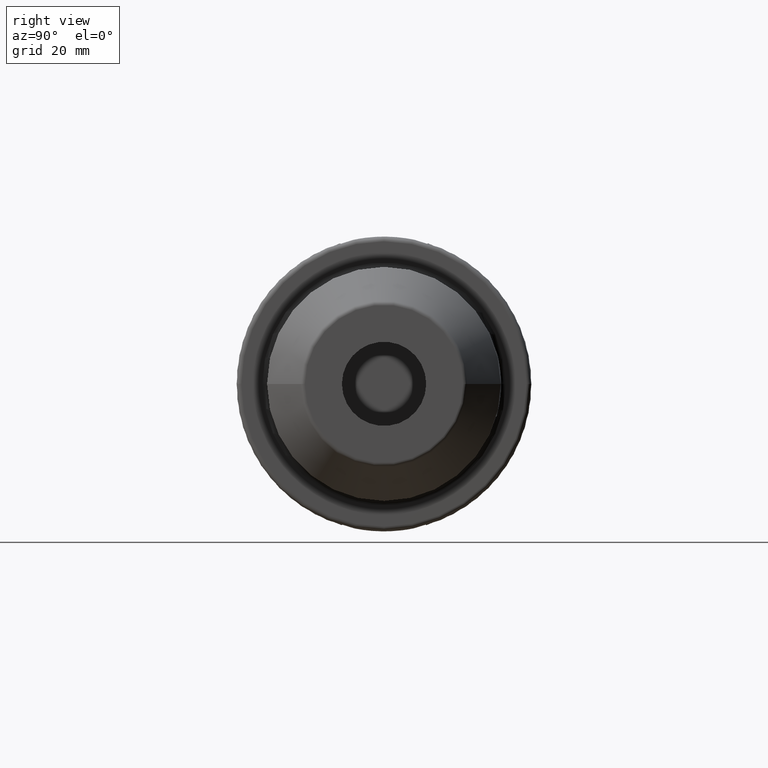
[diagram: clean part render]
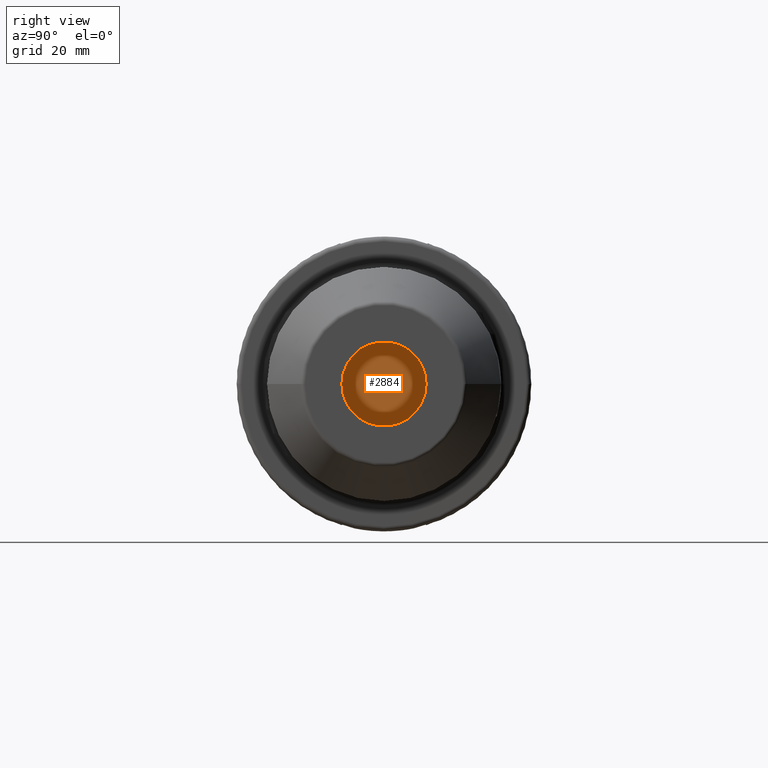
[diagram: same view with one face highlighted and labeled with its STEP entity id]
A machine part, right view. The second image highlights one B-rep face of the part: STEP entity #2884.
In plain terms, the highlighted planar face has unit normal (1, 0, 0).
Its self-contained STEP definition (entity closure, byte-faithful):
#1062=CARTESIAN_POINT('',(4.9E0,0.E0,0.E0));
#1063=DIRECTION('',(-1.E0,0.E0,0.E0));
#1064=DIRECTION('',(0.E0,1.E0,0.E0));
#1065=AXIS2_PLACEMENT_3D('',#1062,#1063,#1064);
#1067=CARTESIAN_POINT('',(4.9E0,0.E0,0.E0));
#1068=DIRECTION('',(1.E0,0.E0,0.E0));
#1069=DIRECTION('',(0.E0,1.E0,0.E0));
#1070=AXIS2_PLACEMENT_3D('',#1067,#1068,#1069);
#1515=CARTESIAN_POINT('',(4.9E0,9.E0,0.E0));
#1516=CARTESIAN_POINT('',(4.9E0,-9.E0,0.E0));
#1517=VERTEX_POINT('',#1515);
#1518=VERTEX_POINT('',#1516);
#2875=CARTESIAN_POINT('',(4.9E0,0.E0,0.E0));
#2876=DIRECTION('',(1.E0,0.E0,0.E0));
#2877=DIRECTION('',(0.E0,-1.E0,0.E0));
#2878=AXIS2_PLACEMENT_3D('',#2875,#2876,#2877);
#2879=PLANE('',#2878);
#2880=ORIENTED_EDGE('',*,*,#2799,.T.);
#2881=ORIENTED_EDGE('',*,*,#2778,.F.);
#2882=EDGE_LOOP('',(#2880,#2881));
#2883=FACE_OUTER_BOUND('',#2882,.F.);
#2884=ADVANCED_FACE('',(#2883),#2879,.T.);
#1066=CIRCLE('',#1065,9.E0);
#1071=CIRCLE('',#1070,9.E0);
#2778=EDGE_CURVE('',#1517,#1518,#1071,.T.);
#2799=EDGE_CURVE('',#1517,#1518,#1066,.T.);